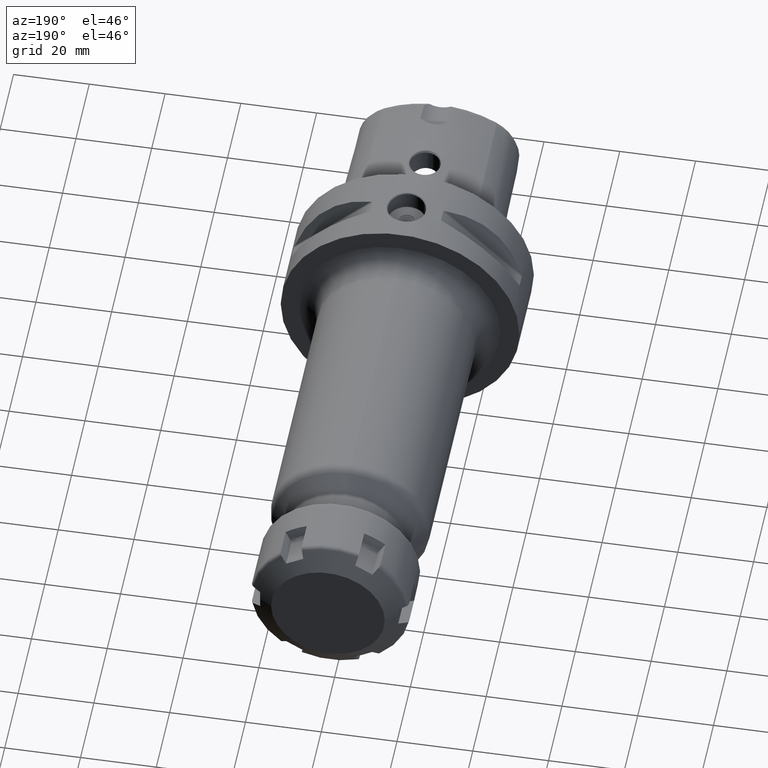
[diagram: clean part render]
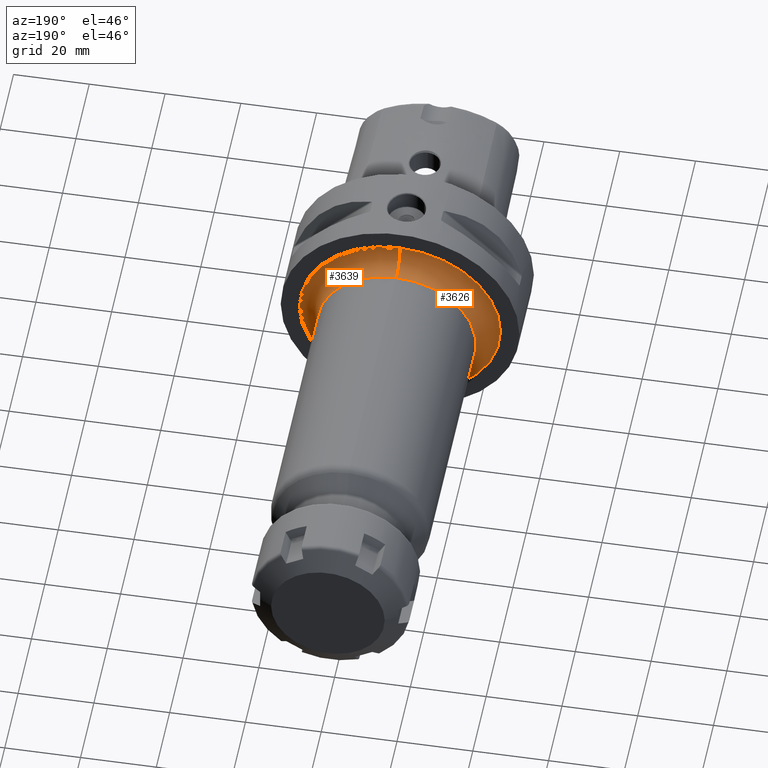
[diagram: same view with one multi-face feature highlighted, each face labeled with its STEP entity id]
A machine part, auxiliary view. The highlighted faces form ONE feature: a constant-radius fillet chain: 2 tangent blend faces with common blend radius 5.5 mm. The faces share edges in the B-rep.
Their STEP definitions:
[1] entity #3626 (Torus):
#1589=CARTESIAN_POINT('',(0.E0,2.2E1,0.E0));
#1590=DIRECTION('',(0.E0,1.E0,0.E0));
#1591=DIRECTION('',(0.E0,0.E0,-1.E0));
#1592=AXIS2_PLACEMENT_3D('',#1589,#1590,#1591);
#1599=CARTESIAN_POINT('',(1.638184032871E-11,2.75E1,-2.65E1));
#1600=DIRECTION('',(-1.E0,0.E0,-6.181843231756E-13));
#1601=DIRECTION('',(0.E0,-1.E0,4.683122576601E-13));
#1602=AXIS2_PLACEMENT_3D('',#1599,#1600,#1601);
#1604=CARTESIAN_POINT('',(-1.638494895317E-11,2.75E1,2.65E1));
#1605=DIRECTION('',(1.E0,0.E0,6.183005496485E-13));
#1606=DIRECTION('',(0.E0,-1.E0,-4.676663097185E-13));
#1607=AXIS2_PLACEMENT_3D('',#1604,#1605,#1606);
#1638=CARTESIAN_POINT('',(0.E0,2.75E1,0.E0));
#1639=DIRECTION('',(0.E0,1.E0,0.E0));
#1640=DIRECTION('',(0.E0,0.E0,-1.E0));
#1641=AXIS2_PLACEMENT_3D('',#1638,#1639,#1640);
#2142=CARTESIAN_POINT('',(0.E0,2.2E1,-2.65E1));
#2143=CARTESIAN_POINT('',(0.E0,2.2E1,2.65E1));
#2144=VERTEX_POINT('',#2142);
#2145=VERTEX_POINT('',#2143);
#2146=CARTESIAN_POINT('',(0.E0,2.75E1,-2.1E1));
#2147=CARTESIAN_POINT('',(0.E0,2.75E1,2.1E1));
#2148=VERTEX_POINT('',#2146);
#2149=VERTEX_POINT('',#2147);
#3612=CARTESIAN_POINT('',(0.E0,2.75E1,0.E0));
#3613=DIRECTION('',(0.E0,1.E0,0.E0));
#3614=DIRECTION('',(1.550874774442E-2,0.E0,-9.998797321395E-1));
#3615=AXIS2_PLACEMENT_3D('',#3612,#3613,#3614);
#3616=TOROIDAL_SURFACE('',#3615,2.65E1,5.5E0);
#3617=ORIENTED_EDGE('',*,*,#3605,.F.);
#3619=ORIENTED_EDGE('',*,*,#3618,.T.);
#3621=ORIENTED_EDGE('',*,*,#3620,.T.);
#3623=ORIENTED_EDGE('',*,*,#3622,.F.);
#3624=EDGE_LOOP('',(#3617,#3619,#3621,#3623));
#3625=FACE_OUTER_BOUND('',#3624,.F.);
#3626=ADVANCED_FACE('',(#3625),#3616,.F.);
#1593=CIRCLE('',#1592,2.65E1);
#1603=CIRCLE('',#1602,5.5E0);
#1608=CIRCLE('',#1607,5.5E0);
#1642=CIRCLE('',#1641,2.1E1);
#3605=EDGE_CURVE('',#2144,#2145,#1593,.T.);
#3618=EDGE_CURVE('',#2144,#2148,#1603,.T.);
#3620=EDGE_CURVE('',#2148,#2149,#1642,.T.);
#3622=EDGE_CURVE('',#2145,#2149,#1608,.T.);
[2] entity #3639 (Torus):
#1594=CARTESIAN_POINT('',(0.E0,2.2E1,0.E0));
#1595=DIRECTION('',(0.E0,1.E0,0.E0));
#1596=DIRECTION('',(0.E0,0.E0,1.E0));
#1597=AXIS2_PLACEMENT_3D('',#1594,#1595,#1596);
#1599=CARTESIAN_POINT('',(1.638184032871E-11,2.75E1,-2.65E1));
#1600=DIRECTION('',(-1.E0,0.E0,-6.181843231756E-13));
#1601=DIRECTION('',(0.E0,-1.E0,4.683122576601E-13));
#1602=AXIS2_PLACEMENT_3D('',#1599,#1600,#1601);
#1604=CARTESIAN_POINT('',(-1.638494895317E-11,2.75E1,2.65E1));
#1605=DIRECTION('',(1.E0,0.E0,6.183005496485E-13));
#1606=DIRECTION('',(0.E0,-1.E0,-4.676663097185E-13));
#1607=AXIS2_PLACEMENT_3D('',#1604,#1605,#1606);
#1614=CARTESIAN_POINT('',(0.E0,2.75E1,0.E0));
#1615=DIRECTION('',(0.E0,1.E0,0.E0));
#1616=DIRECTION('',(0.E0,0.E0,1.E0));
#1617=AXIS2_PLACEMENT_3D('',#1614,#1615,#1616);
#2142=CARTESIAN_POINT('',(0.E0,2.2E1,-2.65E1));
#2143=CARTESIAN_POINT('',(0.E0,2.2E1,2.65E1));
#2144=VERTEX_POINT('',#2142);
#2145=VERTEX_POINT('',#2143);
#2146=CARTESIAN_POINT('',(0.E0,2.75E1,-2.1E1));
#2147=CARTESIAN_POINT('',(0.E0,2.75E1,2.1E1));
#2148=VERTEX_POINT('',#2146);
#2149=VERTEX_POINT('',#2147);
#3627=CARTESIAN_POINT('',(0.E0,2.75E1,0.E0));
#3628=DIRECTION('',(0.E0,1.E0,0.E0));
#3629=DIRECTION('',(-1.550874774442E-2,0.E0,9.998797321395E-1));
#3630=AXIS2_PLACEMENT_3D('',#3627,#3628,#3629);
#3631=TOROIDAL_SURFACE('',#3630,2.65E1,5.5E0);
#3632=ORIENTED_EDGE('',*,*,#3607,.F.);
#3633=ORIENTED_EDGE('',*,*,#3622,.T.);
#3635=ORIENTED_EDGE('',*,*,#3634,.T.);
#3636=ORIENTED_EDGE('',*,*,#3618,.F.);
#3637=EDGE_LOOP('',(#3632,#3633,#3635,#3636));
#3638=FACE_OUTER_BOUND('',#3637,.F.);
#3639=ADVANCED_FACE('',(#3638),#3631,.F.);
#1598=CIRCLE('',#1597,2.65E1);
#1603=CIRCLE('',#1602,5.5E0);
#1608=CIRCLE('',#1607,5.5E0);
#1618=CIRCLE('',#1617,2.1E1);
#3607=EDGE_CURVE('',#2145,#2144,#1598,.T.);
#3618=EDGE_CURVE('',#2144,#2148,#1603,.T.);
#3622=EDGE_CURVE('',#2145,#2149,#1608,.T.);
#3634=EDGE_CURVE('',#2149,#2148,#1618,.T.);